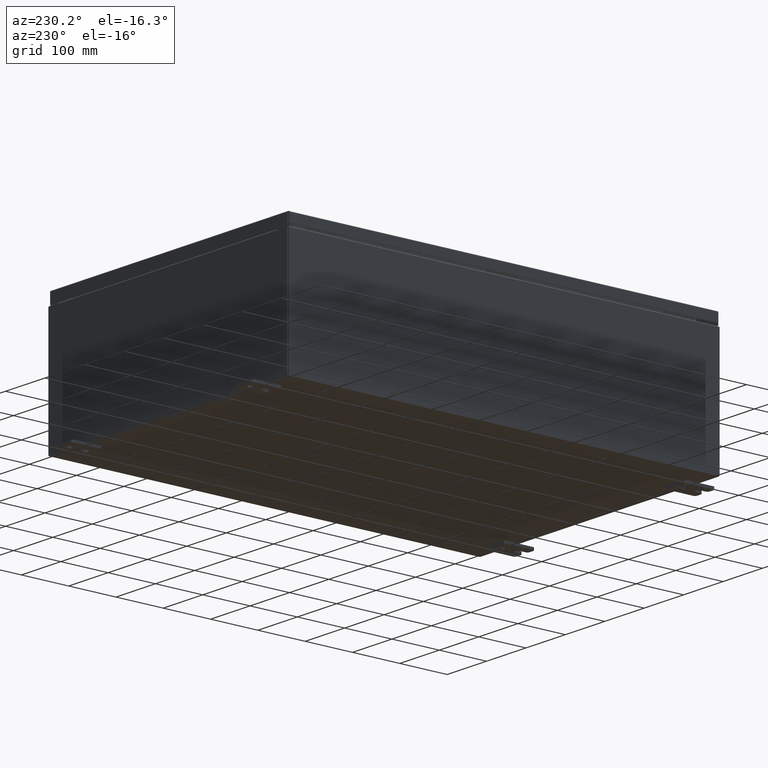
[diagram: clean part render]
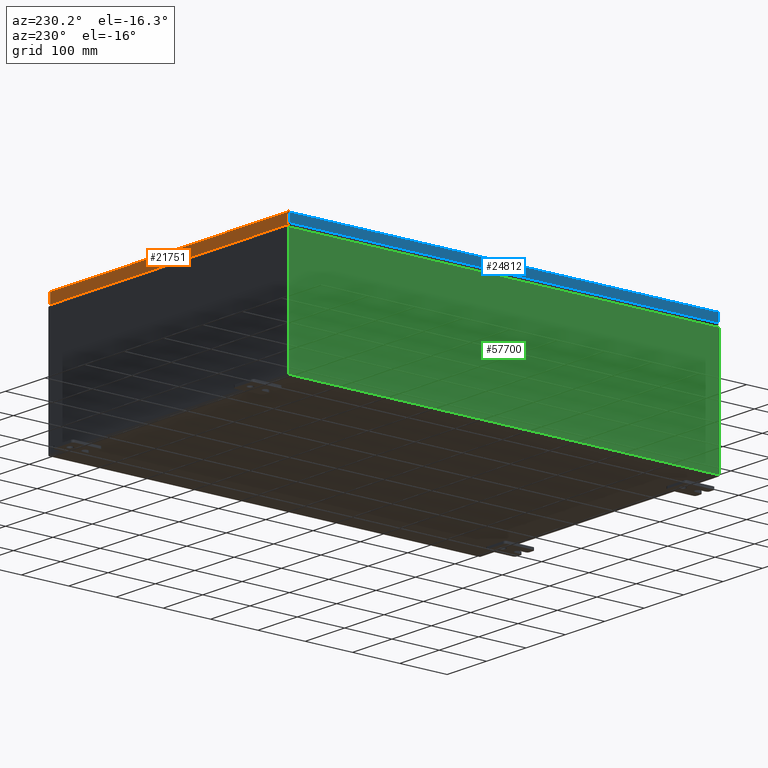
[diagram: same view with three faces highlighted in distinct colors, each labeled with its STEP entity id]
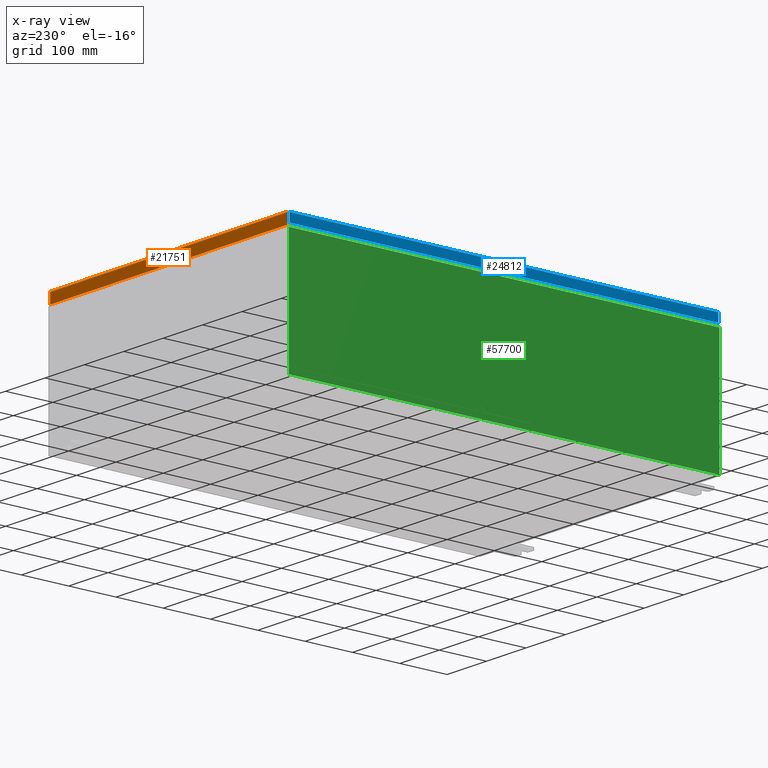
[diagram: x-ray of the same camera — body ghosted, the three highlighted faces saturated]
A machine part, auxiliary view with three faces highlighted in distinct colors.
The next image is the same camera in x-ray (body ghosted, the three faces saturated) — at least one of them is partly hidden behind the body in this view.
Their STEP definitions:

[orange] entity #21751 — the highlighted planar face has unit normal (0, -1, -0).
#892 = LINE ( 'NONE', #29094, #37575 ) ;
#1426 = CARTESIAN_POINT ( 'NONE',  ( -11.84865786437626800, 17.93750000000000400, -0.08769999999999898700 ) ) ;
#2943 = LINE ( 'NONE', #63756, #27952 ) ;
#3059 = LINE ( 'NONE', #55402, #29616 ) ;
#3445 = ORIENTED_EDGE ( 'NONE', *, *, #15465, .T. ) ;
#3662 = CARTESIAN_POINT ( 'NONE',  ( -11.84865786437626900, 17.93750000000000400, -0.07469999999999980800 ) ) ;
#4364 = VERTEX_POINT ( 'NONE', #56674 ) ;
#5056 = EDGE_CURVE ( 'NONE', #23997, #64477, #3059, .T. ) ;
#6163 = CARTESIAN_POINT ( 'NONE',  ( -5.717464428787642800E-030, 17.93750000000000400, 4.568609605355740300E-014 ) ) ;
#9848 = FACE_OUTER_BOUND ( 'NONE', #59855, .T. ) ;
#10490 = ORIENTED_EDGE ( 'NONE', *, *, #55755, .F. ) ;
#11228 = DIRECTION ( 'NONE',  ( 0.0000000000000000000, 2.532419924601857400E-015, -1.000000000000000000 ) ) ;
#11845 = AXIS2_PLACEMENT_3D ( 'NONE', #6163, #41037, #11228 ) ;
#12489 = VERTEX_POINT ( 'NONE', #56451 ) ;
#15465 = EDGE_CURVE ( 'NONE', #23997, #4364, #892, .T. ) ;
#21751 = ADVANCED_FACE ( 'NONE', ( #9848 ), #36067, .F. ) ;
#23997 = VERTEX_POINT ( 'NONE', #27422 ) ;
#27422 = CARTESIAN_POINT ( 'NONE',  ( 11.84865786437626800, 17.93750000000000400, -0.08769999999999789100 ) ) ;
#27636 = LINE ( 'NONE', #3662, #39320 ) ;
#27952 = VECTOR ( 'NONE', #34036, 39.37007874015748100 ) ;
#29094 = CARTESIAN_POINT ( 'NONE',  ( 11.84865786437626900, 17.93750000000000400, 4.568609605355740300E-014 ) ) ;
#29616 = VECTOR ( 'NONE', #44360, 39.37007874015748100 ) ;
#32223 = ORIENTED_EDGE ( 'NONE', *, *, #5056, .F. ) ;
#33023 = EDGE_CURVE ( 'NONE', #12489, #4364, #2943, .T. ) ;
#34036 = DIRECTION ( 'NONE',  ( 1.000000000000000000, -4.379057701015054300E-047, 1.258652478756310100E-016 ) ) ;
#36067 = PLANE ( 'NONE',  #11845 ) ;
#37575 = VECTOR ( 'NONE', #62320, 39.37007874015748100 ) ;
#39129 = ORIENTED_EDGE ( 'NONE', *, *, #33023, .F. ) ;
#39320 = VECTOR ( 'NONE', #53540, 39.37007874015748100 ) ;
#41037 = DIRECTION ( 'NONE',  ( 3.187436615351995300E-031, -1.000000000000000000, -2.532419924601857400E-015 ) ) ;
#44360 = DIRECTION ( 'NONE',  ( -1.000000000000000000, -8.693008950959990500E-032, -9.153836209136798400E-017 ) ) ;
#53540 = DIRECTION ( 'NONE',  ( -0.0000000000000000000, 2.532419924601857400E-015, -1.000000000000000000 ) ) ;
#55402 = CARTESIAN_POINT ( 'NONE',  ( -11.93750000000000000, 17.93750000000000400, -0.08770000000000008300 ) ) ;
#55755 = EDGE_CURVE ( 'NONE', #64477, #12489, #27636, .T. ) ;
#56451 = CARTESIAN_POINT ( 'NONE',  ( -11.84865786437626900, 17.93750000000000700, -0.9377000000000028600 ) ) ;
#56674 = CARTESIAN_POINT ( 'NONE',  ( 11.84865786437626800, 17.93750000000000700, -0.9376999999999997600 ) ) ;
#59855 = EDGE_LOOP ( 'NONE', ( #32223, #3445, #39129, #10490 ) ) ;
#62320 = DIRECTION ( 'NONE',  ( 0.0000000000000000000, 2.532419924601857400E-015, -1.000000000000000000 ) ) ;
#63756 = CARTESIAN_POINT ( 'NONE',  ( -11.93750000000000000, 17.93750000000000700, -0.9377000000000028600 ) ) ;
#64477 = VERTEX_POINT ( 'NONE', #1426 ) ;

[blue] entity #24812 — the highlighted planar face has unit normal (1, 0, -0).
#2210 = CARTESIAN_POINT ( 'NONE',  ( -11.93750000000000000, -17.93749999999999600, -0.08770000000000004200 ) ) ;
#3624 = ORIENTED_EDGE ( 'NONE', *, *, #44854, .F. ) ;
#4835 = PLANE ( 'NONE',  #36179 ) ;
#5456 = VECTOR ( 'NONE', #17331, 39.37007874015748100 ) ;
#5915 = LINE ( 'NONE', #10541, #44106 ) ;
#6938 = CARTESIAN_POINT ( 'NONE',  ( -11.93750000000000000, -4.412971175918218500E-030, 3.648065030670395400E-014 ) ) ;
#7257 = CARTESIAN_POINT ( 'NONE',  ( -11.93750000000000000, 17.84865786437627500, -0.08770000000000004200 ) ) ;
#9244 = DIRECTION ( 'NONE',  ( -3.034122441942816500E-015, 6.982962677686267500E-015, -1.000000000000000000 ) ) ;
#10541 = CARTESIAN_POINT ( 'NONE',  ( -11.93750000000000200, -17.93749999999999600, -0.7949999999999997100 ) ) ;
#12004 = DIRECTION ( 'NONE',  ( -3.034122441942816500E-015, 0.0000000000000000000, -1.000000000000000000 ) ) ;
#15149 = FACE_OUTER_BOUND ( 'NONE', #16558, .T. ) ;
#15577 = DIRECTION ( 'NONE',  ( -4.379057701015054300E-047, 1.000000000000000000, 1.218385167906012900E-016 ) ) ;
#16558 = EDGE_LOOP ( 'NONE', ( #36950, #56829, #3624, #19696 ) ) ;
#17331 = DIRECTION ( 'NONE',  ( 3.696729780873900900E-031, -1.000000000000000000, -1.089726516288665400E-045 ) ) ;
#18610 = VERTEX_POINT ( 'NONE', #55866 ) ;
#18777 = LINE ( 'NONE', #2210, #5456 ) ;
#19696 = ORIENTED_EDGE ( 'NONE', *, *, #29430, .F. ) ;
#19819 = VECTOR ( 'NONE', #9244, 39.37007874015748100 ) ;
#24675 = EDGE_CURVE ( 'NONE', #37745, #37679, #46259, .T. ) ;
#24812 = ADVANCED_FACE ( 'NONE', ( #15149 ), #4835, .F. ) ;
#25410 = CARTESIAN_POINT ( 'NONE',  ( -11.93750000000000000, -17.84865786437626800, -0.07469999999999976700 ) ) ;
#29430 = EDGE_CURVE ( 'NONE', #18610, #37664, #51502, .T. ) ;
#36179 = AXIS2_PLACEMENT_3D ( 'NONE', #6938, #41796, #12004 ) ;
#36467 = CARTESIAN_POINT ( 'NONE',  ( -11.93750000000000200, -17.84865786437626100, -0.7949999999999996000 ) ) ;
#36950 = ORIENTED_EDGE ( 'NONE', *, *, #60553, .F. ) ;
#37664 = VERTEX_POINT ( 'NONE', #36467 ) ;
#37679 = VERTEX_POINT ( 'NONE', #61964 ) ;
#37745 = VERTEX_POINT ( 'NONE', #7257 ) ;
#39871 = VECTOR ( 'NONE', #55167, 39.37007874015748100 ) ;
#41796 = DIRECTION ( 'NONE',  ( 1.000000000000000000, 3.696729780873900900E-031, -3.034122441942816500E-015 ) ) ;
#44106 = VECTOR ( 'NONE', #15577, 39.37007874015748100 ) ;
#44854 = EDGE_CURVE ( 'NONE', #37664, #37679, #5915, .T. ) ;
#46259 = LINE ( 'NONE', #53842, #19819 ) ;
#51502 = LINE ( 'NONE', #25410, #39871 ) ;
#53842 = CARTESIAN_POINT ( 'NONE',  ( -11.93750000000000000, 17.84865786437627500, 1.611171620204349500E-013 ) ) ;
#55167 = DIRECTION ( 'NONE',  ( -3.034122441942816500E-015, 6.982962677686267500E-015, -1.000000000000000000 ) ) ;
#55866 = CARTESIAN_POINT ( 'NONE',  ( -11.93750000000000000, -17.84865786437626400, -0.08770000000000007000 ) ) ;
#56829 = ORIENTED_EDGE ( 'NONE', *, *, #24675, .T. ) ;
#60553 = EDGE_CURVE ( 'NONE', #37745, #18610, #18777, .T. ) ;
#61964 = CARTESIAN_POINT ( 'NONE',  ( -11.93750000000000200, 17.84865786437627800, -0.7949999999999954900 ) ) ;

[green] entity #57700 — the highlighted planar face has unit normal (1, 0, 0).
#1966 = LINE ( 'NONE', #2351, #26997 ) ;
#2351 = CARTESIAN_POINT ( 'NONE',  ( -12.00000000000000200, 17.92529999999999600, 0.01299999999999984700 ) ) ;
#2703 = VECTOR ( 'NONE', #39564, 39.37007874015748100 ) ;
#4791 = EDGE_LOOP ( 'NONE', ( #12791, #29969, #62210, #22532 ) ) ;
#6217 = VECTOR ( 'NONE', #17553, 39.37007874015748100 ) ;
#11360 = EDGE_CURVE ( 'NONE', #34309, #55026, #17612, .T. ) ;
#12542 = CARTESIAN_POINT ( 'NONE',  ( -12.00000000000000200, 17.92529999999999600, -4.253780798634223500E-014 ) ) ;
#12791 = ORIENTED_EDGE ( 'NONE', *, *, #11360, .T. ) ;
#14509 = PLANE ( 'NONE',  #55471 ) ;
#14916 = CARTESIAN_POINT ( 'NONE',  ( -12.00000000000000200, -17.92530000000000400, 0.01299999999999984700 ) ) ;
#17414 = FACE_OUTER_BOUND ( 'NONE', #4791, .T. ) ;
#17553 = DIRECTION ( 'NONE',  ( 3.523082860860888200E-015, 0.0000000000000000000, -1.000000000000000000 ) ) ;
#17612 = LINE ( 'NONE', #34559, #2703 ) ;
#19490 = DIRECTION ( 'NONE',  ( 1.000000000000000000, 0.0000000000000000000, 3.523082860860887800E-015 ) ) ;
#21405 = CARTESIAN_POINT ( 'NONE',  ( -12.00000000000000200, 17.92529999999999600, 0.01299999999999984300 ) ) ;
#22532 = ORIENTED_EDGE ( 'NONE', *, *, #29528, .T. ) ;
#26997 = VECTOR ( 'NONE', #32291, 39.37007874015748100 ) ;
#29528 = EDGE_CURVE ( 'NONE', #48083, #34309, #38316, .T. ) ;
#29969 = ORIENTED_EDGE ( 'NONE', *, *, #31035, .T. ) ;
#31035 = EDGE_CURVE ( 'NONE', #55026, #63786, #32773, .T. ) ;
#32291 = DIRECTION ( 'NONE',  ( -0.0000000000000000000, 1.000000000000000000, -0.0000000000000000000 ) ) ;
#32773 = LINE ( 'NONE', #12542, #6217 ) ;
#34282 = CARTESIAN_POINT ( 'NONE',  ( -12.00000000000000200, 0.0000000000000000000, -4.253780798634223500E-014 ) ) ;
#34309 = VERTEX_POINT ( 'NONE', #54687 ) ;
#34559 = CARTESIAN_POINT ( 'NONE',  ( -12.00000000000003600, -17.92530000000000400, 9.837599999999998300 ) ) ;
#38316 = LINE ( 'NONE', #50775, #63144 ) ;
#39564 = DIRECTION ( 'NONE',  ( 0.0000000000000000000, 1.000000000000000000, 0.0000000000000000000 ) ) ;
#45733 = EDGE_CURVE ( 'NONE', #48083, #63786, #1966, .T. ) ;
#48083 = VERTEX_POINT ( 'NONE', #14916 ) ;
#50775 = CARTESIAN_POINT ( 'NONE',  ( -12.00000000000000200, -17.92530000000000400, -4.253780798634223500E-014 ) ) ;
#53330 = CARTESIAN_POINT ( 'NONE',  ( -12.00000000000003600, 17.92529999999999600, 9.837599999999998300 ) ) ;
#54267 = DIRECTION ( 'NONE',  ( 3.523082860860887800E-015, 0.0000000000000000000, -1.000000000000000000 ) ) ;
#54687 = CARTESIAN_POINT ( 'NONE',  ( -12.00000000000003600, -17.92530000000000400, 9.837599999999998300 ) ) ;
#55026 = VERTEX_POINT ( 'NONE', #53330 ) ;
#55471 = AXIS2_PLACEMENT_3D ( 'NONE', #34282, #19490, #54267 ) ;
#55817 = DIRECTION ( 'NONE',  ( -3.523082860860888200E-015, 0.0000000000000000000, 1.000000000000000000 ) ) ;
#57700 = ADVANCED_FACE ( 'NONE', ( #17414 ), #14509, .F. ) ;
#62210 = ORIENTED_EDGE ( 'NONE', *, *, #45733, .F. ) ;
#63144 = VECTOR ( 'NONE', #55817, 39.37007874015748100 ) ;
#63786 = VERTEX_POINT ( 'NONE', #21405 ) ;